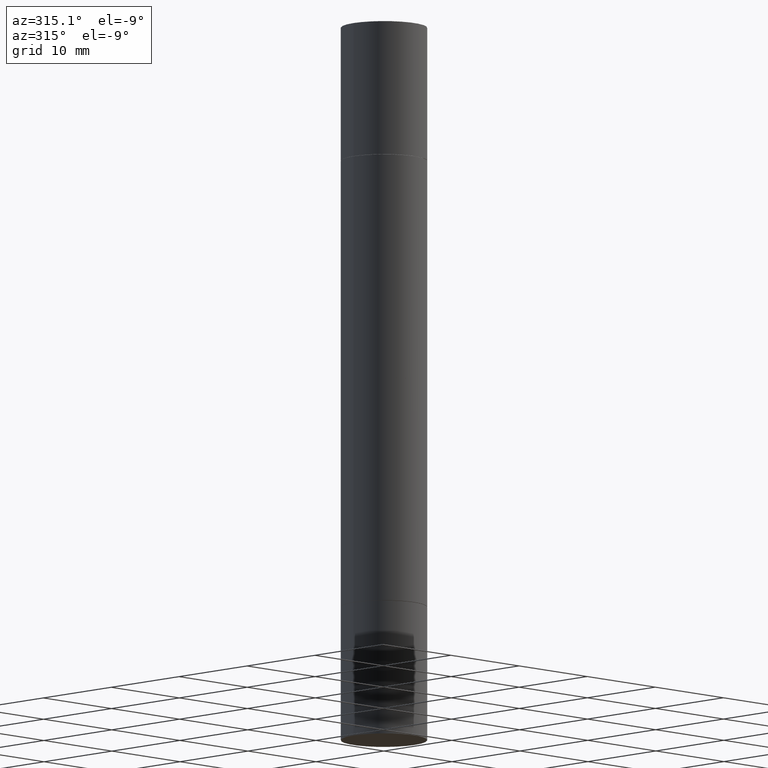
[diagram: clean part render]
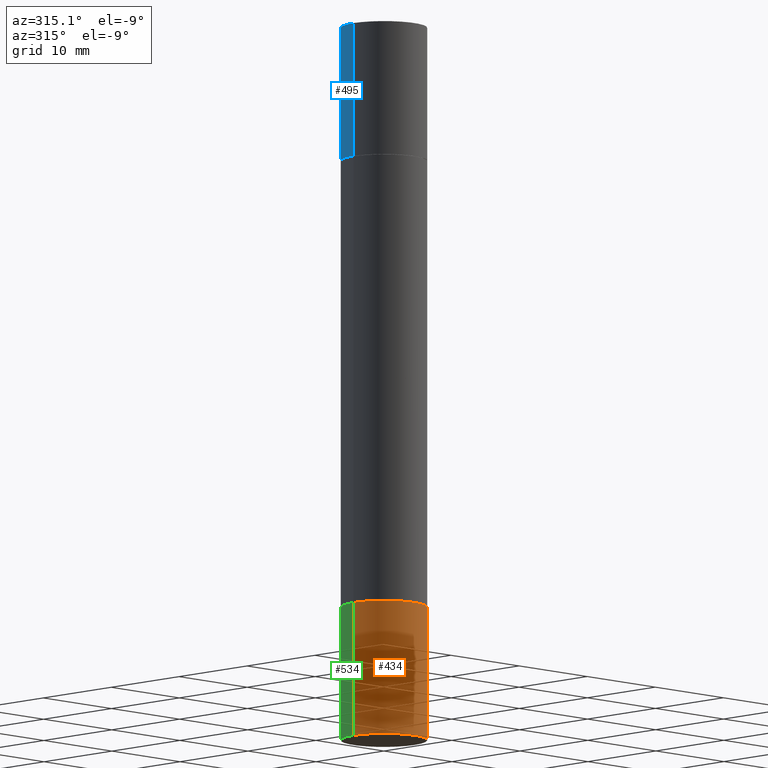
[diagram: same view with three faces highlighted in distinct colors, each labeled with its STEP entity id]
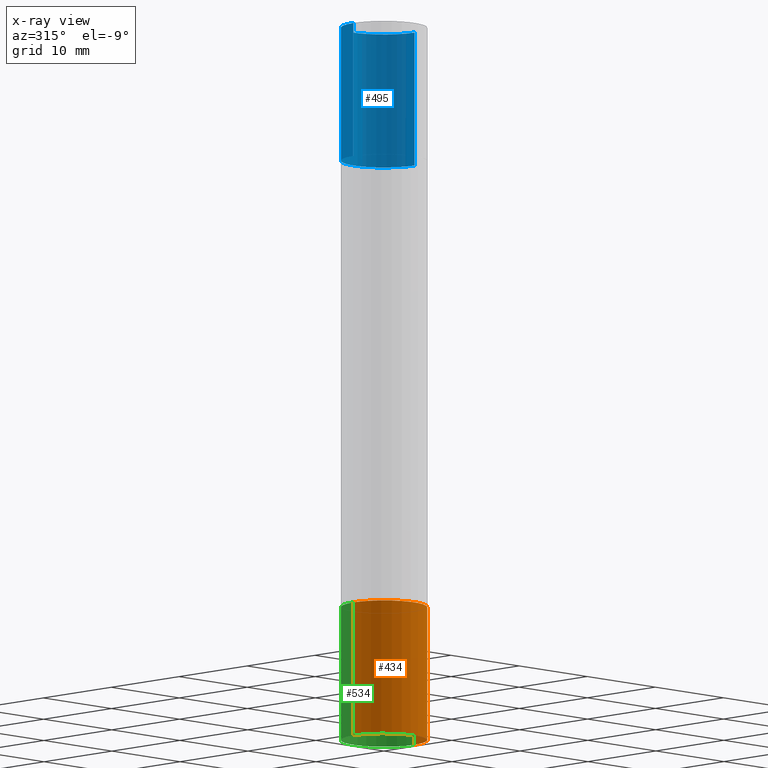
[diagram: x-ray of the same camera — body ghosted, the three highlighted faces saturated]
A machine part, auxiliary view with three faces highlighted in distinct colors.
The next image is the same camera in x-ray (body ghosted, the three faces saturated) — at least one of them is partly hidden behind the body in this view.
Their STEP definitions:

[orange] entity #434 — the highlighted cylindrical surface (partial cylindrical patch) has radius 4.4996 mm, axis along (-0, 0, 1).
#41 = LINE ( 'NONE', #253, #330 ) ;
#53 = CARTESIAN_POINT ( 'NONE',  ( 5.873037884934223228E-29, -8.385141583365697263E-15, -2.401599999999999735 ) ) ;
#55 = VERTEX_POINT ( 'NONE', #129 ) ;
#104 = CARTESIAN_POINT ( 'NONE',  ( -0.1771500000000000019, -8.088667383951849417E-15, -2.952799999999999869 ) ) ;
#108 = EDGE_CURVE ( 'NONE', #188, #626, #41, .T. ) ;
#129 = CARTESIAN_POINT ( 'NONE',  ( 0.1771500000000000019, -1.154667793568816250E-14, -2.952799999999999869 ) ) ;
#159 = AXIS2_PLACEMENT_3D ( 'NONE', #254, #458, #672 ) ;
#188 = VERTEX_POINT ( 'NONE', #104 ) ;
#206 = ORIENTED_EDGE ( 'NONE', *, *, #350, .F. ) ;
#221 = EDGE_CURVE ( 'NONE', #188, #55, #307, .T. ) ;
#224 = CARTESIAN_POINT ( 'NONE',  ( 7.220980290903470182E-29, -1.030964609733603853E-14, -2.952799999999999869 ) ) ;
#253 = CARTESIAN_POINT ( 'NONE',  ( -0.1771500000000000019, 1.258726456399017493E-15, -8.713893512386565325E-30 ) ) ;
#254 = CARTESIAN_POINT ( 'NONE',  ( 0.000000000000000000, 0.000000000000000000, 0.000000000000000000 ) ) ;
#268 = VECTOR ( 'NONE', #405, 39.37007874015748143 ) ;
#271 = ORIENTED_EDGE ( 'NONE', *, *, #360, .T. ) ;
#293 = CARTESIAN_POINT ( 'NONE',  ( -0.1771500000000000019, -8.088667383951849417E-15, -2.401599999999999735 ) ) ;
#298 = LINE ( 'NONE', #456, #268 ) ;
#307 = CIRCLE ( 'NONE', #317, 0.1771500000000000019 ) ;
#317 = AXIS2_PLACEMENT_3D ( 'NONE', #224, #327, #589 ) ;
#327 = DIRECTION ( 'NONE',  ( -2.445468806185136597E-29, 3.491481338843145583E-15, 1.000000000000000000 ) ) ;
#330 = VECTOR ( 'NONE', #457, 39.37007874015748143 ) ;
#350 = EDGE_CURVE ( 'NONE', #626, #409, #351, .T. ) ;
#351 = CIRCLE ( 'NONE', #637, 0.1771500000000000019 ) ;
#360 = EDGE_CURVE ( 'NONE', #55, #409, #298, .T. ) ;
#366 = DIRECTION ( 'NONE',  ( -2.445468806185136597E-29, 3.491481338843145583E-15, 1.000000000000000000 ) ) ;
#405 = DIRECTION ( 'NONE',  ( -2.445468806185136877E-29, 3.491481338843145188E-15, 1.000000000000000000 ) ) ;
#409 = VERTEX_POINT ( 'NONE', #522 ) ;
#434 = ADVANCED_FACE ( 'NONE', ( #463 ), #568, .T. ) ;
#456 = CARTESIAN_POINT ( 'NONE',  ( 0.1771500000000000019, -1.237031838352122197E-15, 8.638147158322499960E-30 ) ) ;
#457 = DIRECTION ( 'NONE',  ( -2.445468806185136877E-29, 3.491481338843145188E-15, 1.000000000000000000 ) ) ;
#458 = DIRECTION ( 'NONE',  ( -2.445468806185136597E-29, 3.491481338843145583E-15, 1.000000000000000000 ) ) ;
#463 = FACE_OUTER_BOUND ( 'NONE', #497, .T. ) ;
#497 = EDGE_LOOP ( 'NONE', ( #592, #609, #271, #206 ) ) ;
#522 = CARTESIAN_POINT ( 'NONE',  ( 0.1771500000000000019, -9.622173421717819657E-15, -2.401599999999999735 ) ) ;
#568 = CYLINDRICAL_SURFACE ( 'NONE', #159, 0.1771500000000000019 ) ;
#589 = DIRECTION ( 'NONE',  ( 1.000000000000000000, -6.982962677686272233E-15, 0.000000000000000000 ) ) ;
#592 = ORIENTED_EDGE ( 'NONE', *, *, #108, .F. ) ;
#609 = ORIENTED_EDGE ( 'NONE', *, *, #221, .T. ) ;
#626 = VERTEX_POINT ( 'NONE', #293 ) ;
#637 = AXIS2_PLACEMENT_3D ( 'NONE', #53, #366, #680 ) ;
#672 = DIRECTION ( 'NONE',  ( 1.000000000000000000, -6.982962677686266711E-15, 4.876176775795935793E-29 ) ) ;
#680 = DIRECTION ( 'NONE',  ( 1.000000000000000000, -6.982962677686266711E-15, 0.000000000000000000 ) ) ;

[blue] entity #495 — the highlighted cylindrical surface (partial cylindrical patch) has radius 4.4996 mm, axis along (-0, -0, -1).
#40 = DIRECTION ( 'NONE',  ( 2.445468806185136597E-29, 3.492890411551752677E-15, 1.000000000000000000 ) ) ;
#43 = CARTESIAN_POINT ( 'NONE',  ( 0.1771500000000000019, -1.154875829063514805E-14, -2.952799999999998981 ) ) ;
#47 = VECTOR ( 'NONE', #613, 39.37007874015748143 ) ;
#49 = DIRECTION ( 'NONE',  ( 1.000000000000000000, -6.982962677686266711E-15, 0.000000000000000000 ) ) ;
#80 = CARTESIAN_POINT ( 'NONE',  ( -0.1771500000000000019, -9.096389231977797770E-15, -2.952799999999998981 ) ) ;
#99 = CIRCLE ( 'NONE', #528, 0.1771500000000000019 ) ;
#113 = VERTEX_POINT ( 'NONE', #200 ) ;
#122 = AXIS2_PLACEMENT_3D ( 'NONE', #355, #515, #365 ) ;
#136 = EDGE_CURVE ( 'NONE', #633, #113, #438, .T. ) ;
#199 = CARTESIAN_POINT ( 'NONE',  ( -0.1771500000000000019, 2.547769778285537851E-16, 5.463695987328559963E-16 ) ) ;
#200 = CARTESIAN_POINT ( 'NONE',  ( -0.1771500000000000019, 2.547769778285537851E-16, -0.5511999999999995792 ) ) ;
#222 = CARTESIAN_POINT ( 'NONE',  ( 0.000000000000000000, -1.031172645228302408E-14, -2.952799999999998981 ) ) ;
#272 = DIRECTION ( 'NONE',  ( -2.445468806185136597E-29, -3.492890411551752677E-15, -1.000000000000000000 ) ) ;
#276 = ORIENTED_EDGE ( 'NONE', *, *, #679, .F. ) ;
#283 = EDGE_LOOP ( 'NONE', ( #276, #369, #345, #643 ) ) ;
#326 = VERTEX_POINT ( 'NONE', #651 ) ;
#345 = ORIENTED_EDGE ( 'NONE', *, *, #377, .T. ) ;
#355 = CARTESIAN_POINT ( 'NONE',  ( 5.873037884934223228E-29, -1.923200839900336120E-15, -0.5511999999999995792 ) ) ;
#365 = DIRECTION ( 'NONE',  ( 1.000000000000000000, -6.982962677686266711E-15, 0.000000000000000000 ) ) ;
#369 = ORIENTED_EDGE ( 'NONE', *, *, #459, .F. ) ;
#377 = EDGE_CURVE ( 'NONE', #326, #633, #678, .T. ) ;
#395 = LINE ( 'NONE', #80, #508 ) ;
#414 = CYLINDRICAL_SURFACE ( 'NONE', #653, 0.1771500000000000019 ) ;
#415 = VERTEX_POINT ( 'NONE', #199 ) ;
#436 = DIRECTION ( 'NONE',  ( -2.445468806185136877E-29, -3.492890411551753071E-15, -1.000000000000000000 ) ) ;
#438 = CIRCLE ( 'NONE', #122, 0.1771500000000000019 ) ;
#459 = EDGE_CURVE ( 'NONE', #326, #415, #99, .T. ) ;
#476 = DIRECTION ( 'NONE',  ( 1.000000000000000000, -6.982962677686272233E-15, 0.000000000000000000 ) ) ;
#480 = FACE_OUTER_BOUND ( 'NONE', #283, .T. ) ;
#495 = ADVANCED_FACE ( 'NONE', ( #480 ), #414, .T. ) ;
#508 = VECTOR ( 'NONE', #436, 39.37007874015748143 ) ;
#515 = DIRECTION ( 'NONE',  ( 2.445468806185136597E-29, 3.492890411551752677E-15, 1.000000000000000000 ) ) ;
#528 = AXIS2_PLACEMENT_3D ( 'NONE', #565, #40, #49 ) ;
#548 = CARTESIAN_POINT ( 'NONE',  ( 0.1771500000000000019, -3.160232678252458120E-15, -0.5511999999999995792 ) ) ;
#565 = CARTESIAN_POINT ( 'NONE',  ( 7.220980290903470182E-29, 2.080354946989631982E-18, 5.463695987328526437E-16 ) ) ;
#613 = DIRECTION ( 'NONE',  ( -2.445468806185136877E-29, -3.492890411551753071E-15, -1.000000000000000000 ) ) ;
#633 = VERTEX_POINT ( 'NONE', #548 ) ;
#643 = ORIENTED_EDGE ( 'NONE', *, *, #136, .T. ) ;
#651 = CARTESIAN_POINT ( 'NONE',  ( 0.1771500000000000019, -1.234951483405132701E-15, 5.463695987328526437E-16 ) ) ;
#653 = AXIS2_PLACEMENT_3D ( 'NONE', #222, #272, #476 ) ;
#678 = LINE ( 'NONE', #43, #47 ) ;
#679 = EDGE_CURVE ( 'NONE', #415, #113, #395, .T. ) ;

[green] entity #534 — the highlighted cylindrical surface (partial cylindrical patch) has radius 4.4996 mm, axis along (-0, 0, 1).
#9 = DIRECTION ( 'NONE',  ( -2.445468806185136597E-29, 3.491481338843145583E-15, 1.000000000000000000 ) ) ;
#35 = CIRCLE ( 'NONE', #636, 0.1771500000000000019 ) ;
#41 = LINE ( 'NONE', #253, #330 ) ;
#55 = VERTEX_POINT ( 'NONE', #129 ) ;
#57 = AXIS2_PLACEMENT_3D ( 'NONE', #470, #9, #105 ) ;
#104 = CARTESIAN_POINT ( 'NONE',  ( -0.1771500000000000019, -8.088667383951849417E-15, -2.952799999999999869 ) ) ;
#105 = DIRECTION ( 'NONE',  ( 1.000000000000000000, -6.982962677686266711E-15, 4.876176775795935793E-29 ) ) ;
#108 = EDGE_CURVE ( 'NONE', #188, #626, #41, .T. ) ;
#119 = EDGE_CURVE ( 'NONE', #55, #188, #35, .T. ) ;
#129 = CARTESIAN_POINT ( 'NONE',  ( 0.1771500000000000019, -1.154667793568816250E-14, -2.952799999999999869 ) ) ;
#138 = AXIS2_PLACEMENT_3D ( 'NONE', #185, #641, #189 ) ;
#150 = DIRECTION ( 'NONE',  ( 1.000000000000000000, -6.982962677686272233E-15, 0.000000000000000000 ) ) ;
#166 = EDGE_LOOP ( 'NONE', ( #464, #552, #223, #215 ) ) ;
#185 = CARTESIAN_POINT ( 'NONE',  ( 5.873037884934223228E-29, -8.385141583365697263E-15, -2.401599999999999735 ) ) ;
#188 = VERTEX_POINT ( 'NONE', #104 ) ;
#189 = DIRECTION ( 'NONE',  ( 1.000000000000000000, -6.982962677686266711E-15, 0.000000000000000000 ) ) ;
#215 = ORIENTED_EDGE ( 'NONE', *, *, #360, .F. ) ;
#223 = ORIENTED_EDGE ( 'NONE', *, *, #256, .F. ) ;
#231 = CIRCLE ( 'NONE', #138, 0.1771500000000000019 ) ;
#253 = CARTESIAN_POINT ( 'NONE',  ( -0.1771500000000000019, 1.258726456399017493E-15, -8.713893512386565325E-30 ) ) ;
#256 = EDGE_CURVE ( 'NONE', #409, #626, #231, .T. ) ;
#268 = VECTOR ( 'NONE', #405, 39.37007874015748143 ) ;
#293 = CARTESIAN_POINT ( 'NONE',  ( -0.1771500000000000019, -8.088667383951849417E-15, -2.401599999999999735 ) ) ;
#298 = LINE ( 'NONE', #456, #268 ) ;
#330 = VECTOR ( 'NONE', #457, 39.37007874015748143 ) ;
#360 = EDGE_CURVE ( 'NONE', #55, #409, #298, .T. ) ;
#367 = CYLINDRICAL_SURFACE ( 'NONE', #57, 0.1771500000000000019 ) ;
#405 = DIRECTION ( 'NONE',  ( -2.445468806185136877E-29, 3.491481338843145188E-15, 1.000000000000000000 ) ) ;
#409 = VERTEX_POINT ( 'NONE', #522 ) ;
#456 = CARTESIAN_POINT ( 'NONE',  ( 0.1771500000000000019, -1.237031838352122197E-15, 8.638147158322499960E-30 ) ) ;
#457 = DIRECTION ( 'NONE',  ( -2.445468806185136877E-29, 3.491481338843145188E-15, 1.000000000000000000 ) ) ;
#464 = ORIENTED_EDGE ( 'NONE', *, *, #119, .T. ) ;
#470 = CARTESIAN_POINT ( 'NONE',  ( 0.000000000000000000, 0.000000000000000000, 0.000000000000000000 ) ) ;
#516 = CARTESIAN_POINT ( 'NONE',  ( 7.220980290903470182E-29, -1.030964609733603853E-14, -2.952799999999999869 ) ) ;
#522 = CARTESIAN_POINT ( 'NONE',  ( 0.1771500000000000019, -9.622173421717819657E-15, -2.401599999999999735 ) ) ;
#532 = FACE_OUTER_BOUND ( 'NONE', #166, .T. ) ;
#534 = ADVANCED_FACE ( 'NONE', ( #532 ), #367, .T. ) ;
#552 = ORIENTED_EDGE ( 'NONE', *, *, #108, .T. ) ;
#617 = DIRECTION ( 'NONE',  ( -2.445468806185136597E-29, 3.491481338843145583E-15, 1.000000000000000000 ) ) ;
#626 = VERTEX_POINT ( 'NONE', #293 ) ;
#636 = AXIS2_PLACEMENT_3D ( 'NONE', #516, #617, #150 ) ;
#641 = DIRECTION ( 'NONE',  ( -2.445468806185136597E-29, 3.491481338843145583E-15, 1.000000000000000000 ) ) ;